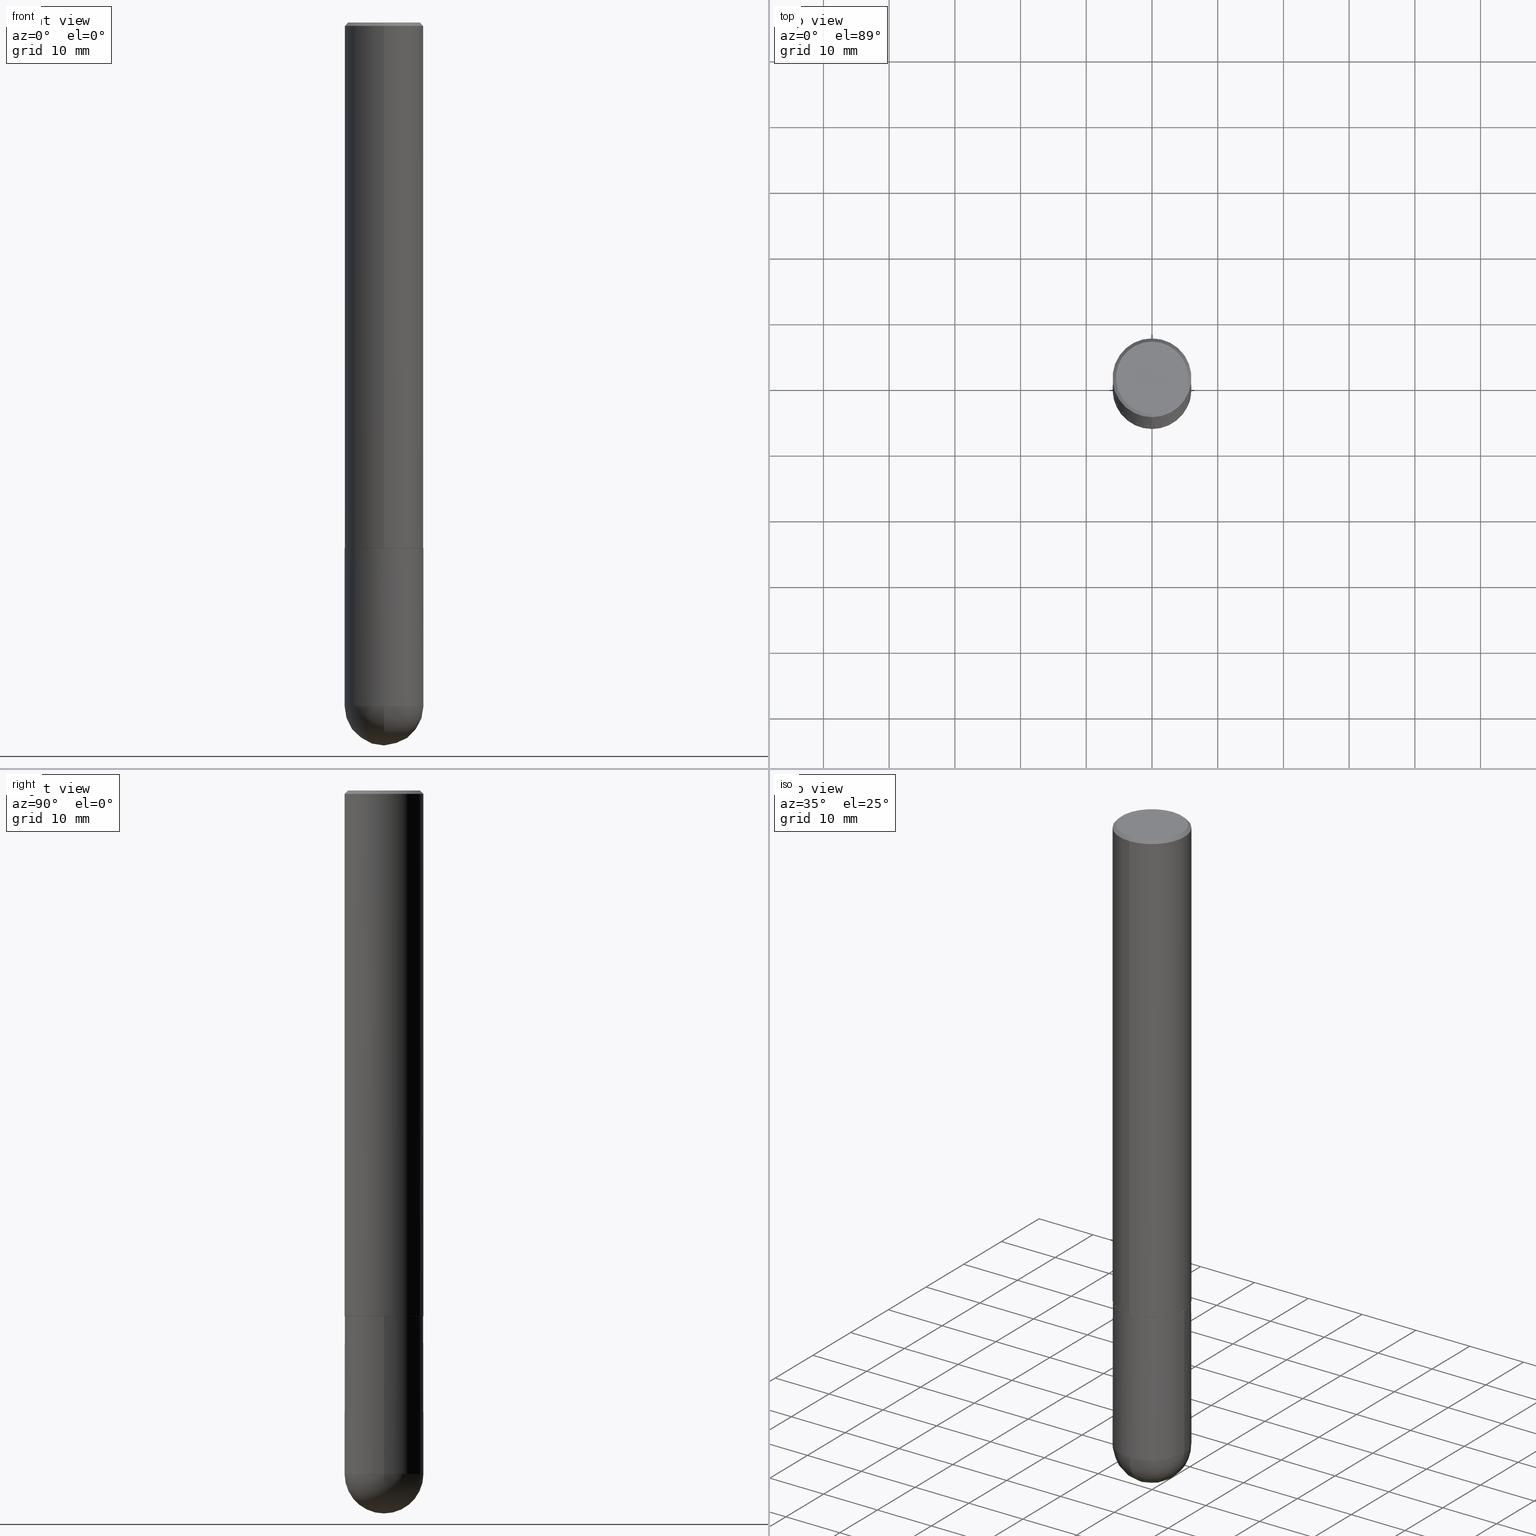
[diagram: canonical four-view strip — front | top / right | iso, engineering-drawing reading convention]
A machine part, canonical four-view strip (front | top / right | iso — engineering-drawing reading convention). The complete STEP part file that produces these views, byte-faithful:
ISO-10303-21;
HEADER;
FILE_DESCRIPTION (( 'STEP AP203' ),
    '1' );
FILE_NAME ('49627.STEP',
    '2024-04-10T12:31:11',
    ( '' ),
    ( '' ),
    'SwSTEP 2.0',
    'SolidWorks 2023',
    '' );
FILE_SCHEMA (( 'CONFIG_CONTROL_DESIGN' ));
ENDSEC;

DATA;
#1 = AXIS2_PLACEMENT_3D ( 'NONE', #71, #196, #137 ) ;
#2 = ADVANCED_FACE ( 'NONE', ( #16 ), #211, .T. ) ;
#3 = CIRCLE ( 'NONE', #91, 0.2362000000000002709 ) ;
#4 = DIRECTION ( 'NONE',  ( 1.000000000000000000, -6.982962677686265133E-15, 0.000000000000000000 ) ) ;
#5 = ADVANCED_BREP_SHAPE_REPRESENTATION ( '49627', ( #185, #309, #49 ), #136 ) ;
#6 = CARTESIAN_POINT ( 'NONE',  ( 1.649375784469572847E-15, 0.2361999999999890021, -3.149600000000001288 ) ) ;
#7 = CARTESIAN_POINT ( 'NONE',  ( 1.026957149490729443E-28, -1.558027752357013406E-14, -4.330700000000000216 ) ) ;
#8 = VECTOR ( 'NONE', #29, 39.37007874015748143 ) ;
#9 = AXIS2_PLACEMENT_3D ( 'NONE', #222, #335, #64 ) ;
#10 = DATE_AND_TIME ( #361, #108 ) ;
#11 = ADVANCED_FACE ( 'NONE', ( #138 ), #78, .F. ) ;
#12 = APPROVAL_STATUS ( 'not_yet_approved' ) ;
#13 = PRODUCT ( '49627', '49627', '', ( #216 ) ) ;
#14 = ORIENTED_EDGE ( 'NONE', *, *, #392, .F. ) ;
#15 = APPLICATION_PROTOCOL_DEFINITION ( 'international standard', 'config_control_design', 1994, #385 ) ;
#16 = FACE_OUTER_BOUND ( 'NONE', #142, .T. ) ;
#17 = EDGE_CURVE ( 'NONE', #304, #225, #317, .T. ) ;
#18 = VECTOR ( 'NONE', #398, 39.37007874015748854 ) ;
#19 = CIRCLE ( 'NONE', #255, 0.2361999999999999933 ) ;
#20 = ORIENTED_EDGE ( 'NONE', *, *, #17, .F. ) ;
#21 = PERSON_AND_ORGANIZATION_ROLE ( 'creator' ) ;
#22 = EDGE_LOOP ( 'NONE', ( #54, #410, #189, #105 ) ) ;
#23 = APPROVAL ( #12, 'UNSPECIFIED' ) ;
#24 = ORIENTED_EDGE ( 'NONE', *, *, #369, .F. ) ;
#25 = DIRECTION ( 'NONE',  ( -2.446209613660721864E-29, 3.490420460373964582E-15, 1.000000000000000000 ) ) ;
#26 = ADVANCED_FACE ( 'NONE', ( #40 ), #102, .T. ) ;
#27 = LINE ( 'NONE', #194, #8 ) ;
#28 = DIRECTION ( 'NONE',  ( 1.000000000000000000, -6.982962677686265133E-15, 0.000000000000000000 ) ) ;
#29 = DIRECTION ( 'NONE',  ( 4.937700262164540154E-15, 0.7071067811865440200, -0.7071067811865511255 ) ) ;
#30 = DIRECTION ( 'NONE',  ( 1.000000000000000000, -6.982962677686265133E-15, 0.000000000000000000 ) ) ;
#31 = ORIENTED_EDGE ( 'NONE', *, *, #140, .F. ) ;
#32 = ORIENTED_EDGE ( 'NONE', *, *, #94, .F. ) ;
#33 = EDGE_CURVE ( 'NONE', #304, #219, #269, .T. ) ;
#34 = DIRECTION ( 'NONE',  ( 6.982962677686265922E-15, 1.000000000000000000, -3.487819265831412533E-15 ) ) ;
#35 = CC_DESIGN_DATE_AND_TIME_ASSIGNMENT ( #47, #354, ( #289 ) ) ;
#36 = ORIENTED_EDGE ( 'NONE', *, *, #272, .F. ) ;
#37 = DIRECTION ( 'NONE',  ( -1.000000000000000000, 6.982962677686265922E-15, -4.876176775795935793E-29 ) ) ;
#38 = EDGE_CURVE ( 'NONE', #79, #396, #152, .T. ) ;
#39 = CYLINDRICAL_SURFACE ( 'NONE', #85, 0.2362000000000001598 ) ;
#40 = FACE_OUTER_BOUND ( 'NONE', #364, .T. ) ;
#41 = CARTESIAN_POINT ( 'NONE',  ( -0.2361999999999999933, -1.096801804149146130E-14, -3.149600000000000399 ) ) ;
#42 = VECTOR ( 'NONE', #199, 39.37007874015748143 ) ;
#43 = VECTOR ( 'NONE', #408, 39.37007874015748143 ) ;
#44 = CARTESIAN_POINT ( 'NONE',  ( 7.702248551960706711E-29, -1.099676962482037231E-14, -3.149600000000000399 ) ) ;
#45 = DIRECTION ( 'NONE',  ( -6.982962677686265922E-15, -1.000000000000000000, 4.626330217890361448E-15 ) ) ;
#46 = ADVANCED_FACE ( 'NONE', ( #221 ), #39, .T. ) ;
#47 = DATE_AND_TIME ( #123, #75 ) ;
#48 = CIRCLE ( 'NONE', #298, 0.2361999999999999378 ) ;
#49 = AXIS2_PLACEMENT_3D ( 'NONE', #359, #390, #332 ) ;
#50 = PRODUCT_RELATED_PRODUCT_CATEGORY ( 'detail', '', ( #13 ) ) ;
#51 = APPROVAL_STATUS ( 'not_yet_approved' ) ;
#52 = PERSON_AND_ORGANIZATION ( #167, #312 ) ;
#53 = EDGE_CURVE ( 'NONE', #125, #263, #290, .T. ) ;
#54 = ORIENTED_EDGE ( 'NONE', *, *, #363, .F. ) ;
#55 = DATE_AND_TIME ( #88, #262 ) ;
#56 = CC_DESIGN_APPROVAL ( #63, ( #218 ) ) ;
#57 = EDGE_LOOP ( 'NONE', ( #279, #346 ) ) ;
#58 = PERSON_AND_ORGANIZATION ( #167, #312 ) ;
#59 = ORIENTED_EDGE ( 'NONE', *, *, #217, .T. ) ;
#60 = ORIENTED_EDGE ( 'NONE', *, *, #369, .T. ) ;
#61 = DIRECTION ( 'NONE',  ( -6.982962677686265922E-15, -1.000000000000000000, 3.490420460373964977E-15 ) ) ;
#62 = DIRECTION ( 'NONE',  ( -6.982962677686265922E-15, -1.000000000000000000, 3.487819265831412533E-15 ) ) ;
#63 = APPROVAL ( #386, 'UNSPECIFIED' ) ;
#64 = DIRECTION ( 'NONE',  ( -6.982962677686265922E-15, -1.000000000000000000, 3.490420460373964582E-15 ) ) ;
#65 = DIRECTION ( 'NONE',  ( -2.445468806185136597E-29, 3.491481338843145583E-15, 1.000000000000000000 ) ) ;
#66 = FACE_OUTER_BOUND ( 'NONE', #76, .T. ) ;
#67 = DIRECTION ( 'NONE',  ( 2.446209613660721584E-29, -3.490420460373964582E-15, -1.000000000000000000 ) ) ;
#68 = FACE_OUTER_BOUND ( 'NONE', #300, .T. ) ;
#69 = DIRECTION ( 'NONE',  ( -6.982962677686265922E-15, -1.000000000000000000, 3.490420460373964977E-15 ) ) ;
#70 = ORIENTED_EDGE ( 'NONE', *, *, #200, .F. ) ;
#71 = CARTESIAN_POINT ( 'NONE',  ( 7.704581799185809683E-29, -1.099342828199384155E-14, -3.149600000000000399 ) ) ;
#72 = DIRECTION ( 'NONE',  ( 1.000000000000000000, -6.982962677686266711E-15, 4.876176775795936353E-29 ) ) ;
#73 = AXIS2_PLACEMENT_3D ( 'NONE', #98, #190, #28 ) ;
#74 = CARTESIAN_POINT ( 'NONE',  ( -1.551844647095920142E-15, -0.2162000000000000866, 6.220756544147017291E-16 ) ) ;
#75 = LOCAL_TIME ( 8, 31, 11.00000000000000000, #393 ) ;
#76 = EDGE_LOOP ( 'NONE', ( #395, #59, #302, #14 ) ) ;
#77 = CARTESIAN_POINT ( 'NONE',  ( 1.671196514507832497E-15, 0.2351999999999890012, -3.149600000000001288 ) ) ;
#78 = PLANE ( 'NONE',  #267 ) ;
#79 = VERTEX_POINT ( 'NONE', #93 ) ;
#80 = DIRECTION ( 'NONE',  ( -2.446209613660721864E-29, 3.490420460373964582E-15, 1.000000000000000000 ) ) ;
#81 = VECTOR ( 'NONE', #376, 39.37007874015748143 ) ;
#82 = CARTESIAN_POINT ( 'NONE',  ( 7.702135589572149804E-29, -1.098993786153346755E-14, -3.148600000000000509 ) ) ;
#83 = PERSON_AND_ORGANIZATION ( #167, #312 ) ;
#84 = CARTESIAN_POINT ( 'NONE',  ( 7.704581799185809683E-29, -1.099342828199384155E-14, -3.149600000000000399 ) ) ;
#85 = AXIS2_PLACEMENT_3D ( 'NONE', #96, #195, #69 ) ;
#86 = AXIS2_PLACEMENT_3D ( 'NONE', #191, #161, #229 ) ;
#87 = EDGE_LOOP ( 'NONE', ( #283, #232, #60, #333 ) ) ;
#88 = CALENDAR_DATE ( 2024, 10, 4 ) ;
#89 = APPROVAL_DATE_TIME ( #10, #63 ) ;
#90 = ORIENTED_EDGE ( 'NONE', *, *, #245, .T. ) ;
#91 = AXIS2_PLACEMENT_3D ( 'NONE', #328, #259, #111 ) ;
#92 = ORIENTED_EDGE ( 'NONE', *, *, #53, .F. ) ;
#93 = CARTESIAN_POINT ( 'NONE',  ( 1.649375784469495934E-15, 0.2361999999999998545, -0.02000000000000087472 ) ) ;
#94 = EDGE_CURVE ( 'NONE', #178, #112, #208, .T. ) ;
#95 = PLANE ( 'NONE',  #9 ) ;
#96 = CARTESIAN_POINT ( 'NONE',  ( 0.000000000000000000, 0.000000000000000000, 0.000000000000000000 ) ) ;
#97 = ORIENTED_EDGE ( 'NONE', *, *, #200, .T. ) ;
#98 = CARTESIAN_POINT ( 'NONE',  ( 7.702248551960706711E-29, -1.099676962482037231E-14, -3.149600000000000399 ) ) ;
#99 = EDGE_CURVE ( 'NONE', #112, #215, #182, .T. ) ;
#100 = AXIS2_PLACEMENT_3D ( 'NONE', #235, #261, #320 ) ;
#101 = CARTESIAN_POINT ( 'NONE',  ( 1.001297202692504215E-28, -1.429587034189326149E-14, -4.094500000000000028 ) ) ;
#102 = CYLINDRICAL_SURFACE ( 'NONE', #168, 0.2361999999999999933 ) ;
#103 = DIRECTION ( 'NONE',  ( -2.446209613660721864E-29, 3.490420460373964582E-15, 1.000000000000000000 ) ) ;
#104 = ADVANCED_FACE ( 'NONE', ( #284 ), #226, .T. ) ;
#105 = ORIENTED_EDGE ( 'NONE', *, *, #319, .F. ) ;
#106 = AXIS2_PLACEMENT_3D ( 'NONE', #315, #254, #34 ) ;
#107 = DIRECTION ( 'NONE',  ( -2.446209613660721864E-29, 3.490420460373964582E-15, 1.000000000000000000 ) ) ;
#108 = LOCAL_TIME ( 8, 31, 11.00000000000000000, #243 ) ;
#109 = ORIENTED_EDGE ( 'NONE', *, *, #126, .F. ) ;
#110 = CARTESIAN_POINT ( 'NONE',  ( 7.702135589572149804E-29, -1.098993786153346755E-14, -3.148600000000000509 ) ) ;
#111 = DIRECTION ( 'NONE',  ( -7.105427357601001070E-15, -1.000000000000000000, 0.000000000000000000 ) ) ;
#112 = VERTEX_POINT ( 'NONE', #166 ) ;
#113 = CARTESIAN_POINT ( 'NONE',  ( 1.579546157692633621E-15, 0.2162000000000000866, -8.871821526510011499E-16 ) ) ;
#114 = ADVANCED_FACE ( 'NONE', ( #280 ), #310, .T. ) ;
#115 = CLOSED_SHELL ( 'NONE', ( #180, #104, #257, #176, #46, #170, #234, #11 ) ) ;
#116 = PRODUCT_DEFINITION_FORMATION_WITH_SPECIFIED_SOURCE ( 'ANY', '', #13, .NOT_KNOWN. ) ;
#117 = CARTESIAN_POINT ( 'NONE',  ( 0.000000000000000000, 0.000000000000000000, 0.000000000000000000 ) ) ;
#118 = DIRECTION ( 'NONE',  ( -2.445468806185136597E-29, 3.491481338843145583E-15, 1.000000000000000000 ) ) ;
#119 = DATE_TIME_ROLE ( 'classification_date' ) ;
#120 = DESIGN_CONTEXT ( 'detailed design', #385, 'design' ) ;
#121 =( NAMED_UNIT ( * ) PLANE_ANGLE_UNIT ( ) SI_UNIT ( $, .RADIAN. ) );
#122 = CALENDAR_DATE ( 2024, 10, 4 ) ;
#123 = CALENDAR_DATE ( 2024, 10, 4 ) ;
#124 = DATE_AND_TIME ( #122, #240 ) ;
#125 = VERTEX_POINT ( 'NONE', #316 ) ;
#126 = EDGE_CURVE ( 'NONE', #306, #79, #27, .T. ) ;
#127 = AXIS2_PLACEMENT_3D ( 'NONE', #139, #223, #334 ) ;
#128 = APPROVAL_PERSON_ORGANIZATION ( #331, #23, #301 ) ;
#129 = DIRECTION ( 'NONE',  ( -2.446209613660721864E-29, 3.490420460373964582E-15, 1.000000000000000000 ) ) ;
#130 = FACE_OUTER_BOUND ( 'NONE', #256, .T. ) ;
#131 = DIRECTION ( 'NONE',  ( -2.445468806185136597E-29, 3.491481338843145583E-15, 1.000000000000000000 ) ) ;
#132 = LINE ( 'NONE', #252, #18 ) ;
#133 = CC_DESIGN_PERSON_AND_ORGANIZATION_ASSIGNMENT ( #270, #151, ( #116 ) ) ;
#134 = CIRCLE ( 'NONE', #157, 0.2351999999999999924 ) ;
#135 = ORIENTED_EDGE ( 'NONE', *, *, #272, .T. ) ;
#136 =( GEOMETRIC_REPRESENTATION_CONTEXT ( 3 ) GLOBAL_UNCERTAINTY_ASSIGNED_CONTEXT ( ( #181 ) ) GLOBAL_UNIT_ASSIGNED_CONTEXT ( ( #171, #121, #273 ) ) REPRESENTATION_CONTEXT ( 'NONE', 'WORKASPACE' ) );
#137 = DIRECTION ( 'NONE',  ( -6.982962677686265133E-15, -1.000000000000000000, 4.645999989224937221E-15 ) ) ;
#138 = FACE_OUTER_BOUND ( 'NONE', #198, .T. ) ;
#139 = CARTESIAN_POINT ( 'NONE',  ( 9.681852249011155898E-29, -1.477005271003331337E-14, -4.094500000000000028 ) ) ;
#140 = EDGE_CURVE ( 'NONE', #263, #360, #250, .T. ) ;
#141 = DIRECTION ( 'NONE',  ( 2.438088387897960049E-29, -3.491481338843145188E-15, -1.000000000000000000 ) ) ;
#142 = EDGE_LOOP ( 'NONE', ( #70, #344, #324, #313, #362 ) ) ;
#143 = VECTOR ( 'NONE', #277, 39.37007874015748143 ) ;
#144 = DIRECTION ( 'NONE',  ( -2.446209613660721864E-29, 3.490420460373964582E-15, 1.000000000000000000 ) ) ;
#145 = AXIS2_PLACEMENT_3D ( 'NONE', #292, #239, #342 ) ;
#146 = ORIENTED_EDGE ( 'NONE', *, *, #33, .F. ) ;
#147 = DIRECTION ( 'NONE',  ( 1.000000000000000000, -6.982962677686265133E-15, 0.000000000000000000 ) ) ;
#148 = EDGE_CURVE ( 'NONE', #396, #79, #48, .T. ) ;
#149 = FACE_OUTER_BOUND ( 'NONE', #391, .T. ) ;
#150 = CC_DESIGN_PERSON_AND_ORGANIZATION_ASSIGNMENT ( #83, #275, ( #218 ) ) ;
#151 = PERSON_AND_ORGANIZATION_ROLE ( 'design_supplier' ) ;
#152 = CIRCLE ( 'NONE', #372, 0.2361999999999999378 ) ;
#153 = AXIS2_PLACEMENT_3D ( 'NONE', #345, #377, #202 ) ;
#154 = COORDINATED_UNIVERSAL_TIME_OFFSET ( 5, 0, .BEHIND. ) ;
#155 = PERSON_AND_ORGANIZATION_ROLE ( 'creator' ) ;
#156 = VERTEX_POINT ( 'NONE', #286 ) ;
#157 = AXIS2_PLACEMENT_3D ( 'NONE', #220, #103, #407 ) ;
#158 = SECURITY_CLASSIFICATION_LEVEL ( 'unclassified' ) ;
#159 = CARTESIAN_POINT ( 'NONE',  ( 1.674749228186634382E-15, 0.2351999999999890012, -3.149600000000001288 ) ) ;
#160 = CONICAL_SURFACE ( 'NONE', #1, 0.2351999999999999924, 0.7853981633977554777 ) ;
#161 = DIRECTION ( 'NONE',  ( -2.446209613660721864E-29, 3.490420460373964582E-15, 1.000000000000000000 ) ) ;
#162 = EDGE_CURVE ( 'NONE', #278, #396, #132, .T. ) ;
#163 = ORIENTED_EDGE ( 'NONE', *, *, #126, .T. ) ;
#164 = CARTESIAN_POINT ( 'NONE',  ( 7.704581799185809683E-29, -1.099342828199384155E-14, -3.149600000000000399 ) ) ;
#165 = ORIENTED_EDGE ( 'NONE', *, *, #217, .F. ) ;
#166 = CARTESIAN_POINT ( 'NONE',  ( -0.2361999999999999933, -1.096801804149146287E-14, -4.094500000000000028 ) ) ;
#167 = PERSON ( 'UNSPECIFIED', 'UNSPECIFIED', 'UNSPECIFIED', ('UNSPECIFIED'), ('UNSPECIFIED'), ('UNSPECIFIED') ) ;
#168 = AXIS2_PLACEMENT_3D ( 'NONE', #268, #118, #184 ) ;
#169 = FACE_OUTER_BOUND ( 'NONE', #389, .T. ) ;
#170 = ADVANCED_FACE ( 'NONE', ( #66 ), #238, .T. ) ;
#171 =( CONVERSION_BASED_UNIT ( 'INCH', #322 ) LENGTH_UNIT ( ) NAMED_UNIT ( #366 ) );
#172 = ORIENTED_EDGE ( 'NONE', *, *, #350, .T. ) ;
#173 = FACE_OUTER_BOUND ( 'NONE', #291, .T. ) ;
#174 = LINE ( 'NONE', #77, #81 ) ;
#175 = CIRCLE ( 'NONE', #388, 0.2361999999999999933 ) ;
#176 = ADVANCED_FACE ( 'NONE', ( #68 ), #351, .T. ) ;
#177 = DIRECTION ( 'NONE',  ( -2.445468806185136597E-29, 3.491481338843145583E-15, 1.000000000000000000 ) ) ;
#178 = VERTEX_POINT ( 'NONE', #403 ) ;
#179 = DIRECTION ( 'NONE',  ( 6.982962677686265922E-15, 1.000000000000000000, -3.490420460373964582E-15 ) ) ;
#180 = ADVANCED_FACE ( 'NONE', ( #169 ), #160, .T. ) ;
#181 = UNCERTAINTY_MEASURE_WITH_UNIT (LENGTH_MEASURE( 1.000000000000000082E-05 ), #171, 'distance_accuracy_value', 'NONE');
#182 = CIRCLE ( 'NONE', #201, 0.2361999999999999933 ) ;
#183 = AXIS2_PLACEMENT_3D ( 'NONE', #110, #107, #206 ) ;
#184 = DIRECTION ( 'NONE',  ( 1.000000000000000000, -6.982962677686266711E-15, 4.876176775795936353E-29 ) ) ;
#185 = MANIFOLD_SOLID_BREP ( 'Body-Move/Copy2[1]', #231 ) ;
#186 = APPROVAL_PERSON_ORGANIZATION ( #52, #293, #246 ) ;
#187 = COORDINATED_UNIVERSAL_TIME_OFFSET ( 5, 0, .BEHIND. ) ;
#188 = CARTESIAN_POINT ( 'NONE',  ( -1.642392821791732414E-15, -0.2352000000000109836, -3.149599999999999067 ) ) ;
#189 = ORIENTED_EDGE ( 'NONE', *, *, #336, .F. ) ;
#190 = DIRECTION ( 'NONE',  ( -2.445468806185136597E-29, 3.491481338843145583E-15, 1.000000000000000000 ) ) ;
#191 = CARTESIAN_POINT ( 'NONE',  ( 3.242530323147823351E-45, -4.626665728110367904E-31, -1.325532491181496858E-16 ) ) ;
#192 = VECTOR ( 'NONE', #258, 39.37007874015748143 ) ;
#193 = AXIS2_PLACEMENT_3D ( 'NONE', #6, #141, #37 ) ;
#194 = CARTESIAN_POINT ( 'NONE',  ( 1.649375784469495934E-15, 0.2361999999999998545, -0.02000000000000087472 ) ) ;
#195 = DIRECTION ( 'NONE',  ( -2.446209613660721864E-29, 3.490420460373964582E-15, 1.000000000000000000 ) ) ;
#196 = DIRECTION ( 'NONE',  ( -2.446209613660721864E-29, 3.490420460373964582E-15, 1.000000000000000000 ) ) ;
#197 = ORIENTED_EDGE ( 'NONE', *, *, #94, .T. ) ;
#198 = EDGE_LOOP ( 'NONE', ( #90, #172 ) ) ;
#199 = DIRECTION ( 'NONE',  ( -2.445468806185136877E-29, 3.491481338843145188E-15, 1.000000000000000000 ) ) ;
#200 = EDGE_CURVE ( 'NONE', #112, #360, #368, .T. ) ;
#201 = AXIS2_PLACEMENT_3D ( 'NONE', #101, #131, #314 ) ;
#202 = DIRECTION ( 'NONE',  ( 6.982962677686265922E-15, 1.000000000000000000, 0.000000000000000000 ) ) ;
#203 = CC_DESIGN_DATE_AND_TIME_ASSIGNMENT ( #124, #119, ( #218 ) ) ;
#204 = LINE ( 'NONE', #209, #43 ) ;
#205 = EDGE_LOOP ( 'NONE', ( #135, #249, #371, #24 ) ) ;
#206 = DIRECTION ( 'NONE',  ( -6.982962677686265922E-15, -1.000000000000000000, 4.626330217890361448E-15 ) ) ;
#207 = ORIENTED_EDGE ( 'NONE', *, *, #363, .T. ) ;
#208 = CIRCLE ( 'NONE', #402, 0.2361999999999999933 ) ;
#209 = CARTESIAN_POINT ( 'NONE',  ( 1.678301941865357577E-15, 0.2362000000000001598, -8.244373127403310428E-16 ) ) ;
#210 = CIRCLE ( 'NONE', #373, 0.2361999999999999933 ) ;
#211 = CYLINDRICAL_SURFACE ( 'NONE', #325, 0.2361999999999999933 ) ;
#212 = CARTESIAN_POINT ( 'NONE',  ( -1.642392821791732414E-15, -0.2352000000000109836, -3.149599999999999067 ) ) ;
#213 = SHAPE_DEFINITION_REPRESENTATION ( #271, #5 ) ;
#214 = CALENDAR_DATE ( 2024, 10, 4 ) ;
#215 = VERTEX_POINT ( 'NONE', #374 ) ;
#216 = MECHANICAL_CONTEXT ( 'NONE', #380, 'mechanical' ) ;
#217 = EDGE_CURVE ( 'NONE', #225, #304, #134, .T. ) ;
#218 = SECURITY_CLASSIFICATION ( '', '', #158 ) ;
#219 = VERTEX_POINT ( 'NONE', #365 ) ;
#220 = CARTESIAN_POINT ( 'NONE',  ( 7.704581799185809683E-29, -1.099342828199384155E-14, -3.149600000000000399 ) ) ;
#221 = FACE_OUTER_BOUND ( 'NONE', #87, .T. ) ;
#222 = CARTESIAN_POINT ( 'NONE',  ( 7.704581799185809683E-29, -1.099342828199384155E-14, -3.149600000000000399 ) ) ;
#223 = DIRECTION ( 'NONE',  ( -1.000000000000000000, 6.982962677686265922E-15, -4.883557194083112901E-29 ) ) ;
#224 = AXIS2_PLACEMENT_3D ( 'NONE', #412, #144, #237 ) ;
#225 = VERTEX_POINT ( 'NONE', #159 ) ;
#226 = CYLINDRICAL_SURFACE ( 'NONE', #311, 0.2362000000000001598 ) ;
#227 = ORIENTED_EDGE ( 'NONE', *, *, #162, .F. ) ;
#228 = DIRECTION ( 'NONE',  ( -2.446209613660721864E-29, 3.490420460373964582E-15, 1.000000000000000000 ) ) ;
#229 = DIRECTION ( 'NONE',  ( -6.982962677686265922E-15, -1.000000000000000000, 3.490420460373964582E-15 ) ) ;
#230 = ORIENTED_EDGE ( 'NONE', *, *, #350, .F. ) ;
#231 = CLOSED_SHELL ( 'NONE', ( #26, #406, #114, #378, #2 ) ) ;
#232 = ORIENTED_EDGE ( 'NONE', *, *, #392, .T. ) ;
#233 = LINE ( 'NONE', #265, #382 ) ;
#234 = ADVANCED_FACE ( 'NONE', ( #130 ), #95, .F. ) ;
#235 = CARTESIAN_POINT ( 'NONE',  ( 9.681852249011155898E-29, -1.477005271003331337E-14, -4.094500000000000028 ) ) ;
#236 = CC_DESIGN_PERSON_AND_ORGANIZATION_ASSIGNMENT ( #329, #155, ( #289 ) ) ;
#237 = DIRECTION ( 'NONE',  ( -6.982962677686265922E-15, -1.000000000000000000, 3.490420460373964582E-15 ) ) ;
#238 = CONICAL_SURFACE ( 'NONE', #397, 0.2351999999999999924, 0.7853981633977554777 ) ;
#239 = DIRECTION ( 'NONE',  ( 2.446209613660721864E-29, -3.490420460373964582E-15, -1.000000000000000000 ) ) ;
#240 = LOCAL_TIME ( 8, 31, 11.00000000000000000, #299 ) ;
#241 = APPROVAL_ROLE ( '' ) ;
#242 = PERSON_AND_ORGANIZATION_ROLE ( 'design_owner' ) ;
#243 = COORDINATED_UNIVERSAL_TIME_OFFSET ( 5, 0, .BEHIND. ) ;
#244 = CC_DESIGN_SECURITY_CLASSIFICATION ( #218, ( #116 ) ) ;
#245 = EDGE_CURVE ( 'NONE', #306, #278, #339, .T. ) ;
#246 = APPROVAL_ROLE ( '' ) ;
#247 = PERSON_AND_ORGANIZATION ( #167, #312 ) ;
#248 = ORIENTED_EDGE ( 'NONE', *, *, #99, .F. ) ;
#249 = ORIENTED_EDGE ( 'NONE', *, *, #296, .T. ) ;
#250 = CIRCLE ( 'NONE', #73, 0.2361999999999999933 ) ;
#251 = CC_DESIGN_APPROVAL ( #23, ( #289 ) ) ;
#252 = CARTESIAN_POINT ( 'NONE',  ( -1.620449627073634487E-15, -0.2361999999999999933, -0.01999999999999922673 ) ) ;
#253 = CARTESIAN_POINT ( 'NONE',  ( 0.000000000000000000, 0.000000000000000000, 0.000000000000000000 ) ) ;
#254 = DIRECTION ( 'NONE',  ( 2.446209613660721864E-29, -3.490420460373964582E-15, -1.000000000000000000 ) ) ;
#255 = AXIS2_PLACEMENT_3D ( 'NONE', #44, #177, #147 ) ;
#256 = EDGE_LOOP ( 'NONE', ( #20, #165 ) ) ;
#257 = ADVANCED_FACE ( 'NONE', ( #173 ), #294, .T. ) ;
#258 = DIRECTION ( 'NONE',  ( -2.445468806185136877E-29, 3.491481338843145188E-15, 1.000000000000000000 ) ) ;
#259 = DIRECTION ( 'NONE',  ( -1.000000000000000000, 7.105427357601001070E-15, -4.926315508542082329E-29 ) ) ;
#260 = ORIENTED_EDGE ( 'NONE', *, *, #399, .T. ) ;
#261 = DIRECTION ( 'NONE',  ( -1.000000000000000000, 6.982962677686265922E-15, -4.883557194083112901E-29 ) ) ;
#262 = LOCAL_TIME ( 8, 31, 11.00000000000000000, #154 ) ;
#263 = VERTEX_POINT ( 'NONE', #349 ) ;
#264 = PLANE ( 'NONE',  #193 ) ;
#265 = CARTESIAN_POINT ( 'NONE',  ( -1.649375784469497117E-15, -0.2362000000000001598, 8.244373127403310428E-16 ) ) ;
#266 =( LENGTH_UNIT ( ) NAMED_UNIT ( * ) SI_UNIT ( $, .METRE. ) );
#267 = AXIS2_PLACEMENT_3D ( 'NONE', #338, #67, #179 ) ;
#268 = CARTESIAN_POINT ( 'NONE',  ( 0.000000000000000000, 0.000000000000000000, 0.000000000000000000 ) ) ;
#269 = LINE ( 'NONE', #188, #143 ) ;
#270 = PERSON_AND_ORGANIZATION ( #167, #312 ) ;
#271 = PRODUCT_DEFINITION_SHAPE ( 'NONE', 'NONE',  #289 ) ;
#272 = EDGE_CURVE ( 'NONE', #219, #156, #318, .T. ) ;
#273 =( NAMED_UNIT ( * ) SI_UNIT ( $, .STERADIAN. ) SOLID_ANGLE_UNIT ( ) );
#274 = CIRCLE ( 'NONE', #224, 0.2162000000000000866 ) ;
#275 = PERSON_AND_ORGANIZATION_ROLE ( 'classification_officer' ) ;
#276 = ORIENTED_EDGE ( 'NONE', *, *, #17, .T. ) ;
#277 = DIRECTION ( 'NONE',  ( -4.937700262166064233E-15, -0.7071067811867622899, 0.7071067811863327446 ) ) ;
#278 = VERTEX_POINT ( 'NONE', #74 ) ;
#279 = ORIENTED_EDGE ( 'NONE', *, *, #140, .T. ) ;
#280 = FACE_OUTER_BOUND ( 'NONE', #22, .T. ) ;
#281 = APPROVAL_PERSON_ORGANIZATION ( #247, #63, #241 ) ;
#282 = CARTESIAN_POINT ( 'NONE',  ( 4.892419227321456446E-31, -6.980840920747946766E-17, -0.02000000000000005246 ) ) ;
#283 = ORIENTED_EDGE ( 'NONE', *, *, #296, .F. ) ;
#284 = FACE_OUTER_BOUND ( 'NONE', #205, .T. ) ;
#285 = DIRECTION ( 'NONE',  ( -2.445468806185136597E-29, 3.491481338843145583E-15, 1.000000000000000000 ) ) ;
#286 = CARTESIAN_POINT ( 'NONE',  ( 1.678301941865397612E-15, 0.2361999999999894462, -3.148600000000001398 ) ) ;
#287 = CARTESIAN_POINT ( 'NONE',  ( -0.2361999999999999933, 1.678301941865356591E-15, -1.161852468318208757E-29 ) ) ;
#288 = CARTESIAN_POINT ( 'NONE',  ( 1.001297202692504215E-28, -1.429587034189326149E-14, -4.094500000000000028 ) ) ;
#289 = PRODUCT_DEFINITION ( 'UNKNOWN', '', #116, #120 ) ;
#290 = LINE ( 'NONE', #401, #42 ) ;
#291 = EDGE_LOOP ( 'NONE', ( #230, #348, #323, #109 ) ) ;
#292 = CARTESIAN_POINT ( 'NONE',  ( 4.892419227321456446E-31, -6.980840920747946766E-17, -0.02000000000000005246 ) ) ;
#293 = APPROVAL ( #51, 'UNSPECIFIED' ) ;
#294 = CONICAL_SURFACE ( 'NONE', #145, 0.2361999999999999378, 0.7853981633974467247 ) ;
#295 = DIRECTION ( 'NONE',  ( -2.446209613660722145E-29, 3.490420460373964582E-15, 1.000000000000000000 ) ) ;
#296 = EDGE_CURVE ( 'NONE', #156, #79, #204, .T. ) ;
#297 = CARTESIAN_POINT ( 'NONE',  ( -1.620449627073634487E-15, -0.2361999999999999933, -0.01999999999999922673 ) ) ;
#298 = AXIS2_PLACEMENT_3D ( 'NONE', #337, #228, #370 ) ;
#299 = COORDINATED_UNIVERSAL_TIME_OFFSET ( 5, 0, .BEHIND. ) ;
#300 = EDGE_LOOP ( 'NONE', ( #227, #394, #163, #307 ) ) ;
#301 = APPROVAL_ROLE ( '' ) ;
#302 = ORIENTED_EDGE ( 'NONE', *, *, #33, .T. ) ;
#303 = APPROVAL_DATE_TIME ( #55, #293 ) ;
#304 = VERTEX_POINT ( 'NONE', #212 ) ;
#305 = APPROVAL_DATE_TIME ( #330, #23 ) ;
#306 = VERTEX_POINT ( 'NONE', #113 ) ;
#307 = ORIENTED_EDGE ( 'NONE', *, *, #38, .T. ) ;
#308 = DIRECTION ( 'NONE',  ( -2.446209613660721864E-29, 3.490420460373964582E-15, 1.000000000000000000 ) ) ;
#309 = MANIFOLD_SOLID_BREP ( 'Body-Move/Copy2[2]', #115 ) ;
#310 = SPHERICAL_SURFACE ( 'NONE', #127, 0.2362000000000002709 ) ;
#311 = AXIS2_PLACEMENT_3D ( 'NONE', #253, #341, #61 ) ;
#312 = ORGANIZATION ( 'UNSPECIFIED', 'UNSPECIFIED', '' ) ;
#313 = ORIENTED_EDGE ( 'NONE', *, *, #53, .T. ) ;
#314 = DIRECTION ( 'NONE',  ( 1.000000000000000000, -6.982962677686265133E-15, 0.000000000000000000 ) ) ;
#315 = CARTESIAN_POINT ( 'NONE',  ( 4.892419227321456446E-31, -6.980840920747946766E-17, -0.02000000000000005246 ) ) ;
#316 = CARTESIAN_POINT ( 'NONE',  ( 0.2361999999999999933, -1.429569576782631264E-14, -4.094500000000000028 ) ) ;
#317 = CIRCLE ( 'NONE', #387, 0.2351999999999999924 ) ;
#318 = CIRCLE ( 'NONE', #358, 0.2362000000000004096 ) ;
#319 = EDGE_CURVE ( 'NONE', #215, #125, #210, .T. ) ;
#320 = DIRECTION ( 'NONE',  ( 6.982962677686265922E-15, 1.000000000000000000, -4.626330217890364603E-15 ) ) ;
#321 = DIRECTION ( 'NONE',  ( -2.445468806185136597E-29, 3.491481338843145583E-15, 1.000000000000000000 ) ) ;
#322 = LENGTH_MEASURE_WITH_UNIT ( LENGTH_MEASURE( 0.02539999999999999897 ), #266 );
#323 = ORIENTED_EDGE ( 'NONE', *, *, #148, .T. ) ;
#324 = ORIENTED_EDGE ( 'NONE', *, *, #319, .T. ) ;
#325 = AXIS2_PLACEMENT_3D ( 'NONE', #117, #65, #72 ) ;
#326 = CIRCLE ( 'NONE', #183, 0.2362000000000004096 ) ;
#327 = CARTESIAN_POINT ( 'NONE',  ( 1.001297202692504215E-28, -1.429587034189326149E-14, -4.094500000000000028 ) ) ;
#328 = CARTESIAN_POINT ( 'NONE',  ( 9.681852249011155898E-29, -1.477005271003331337E-14, -4.094500000000000028 ) ) ;
#329 = PERSON_AND_ORGANIZATION ( #167, #312 ) ;
#330 = DATE_AND_TIME ( #214, #352 ) ;
#331 = PERSON_AND_ORGANIZATION ( #167, #312 ) ;
#332 = DIRECTION ( 'NONE',  ( 1.000000000000000000, 0.000000000000000000, 0.000000000000000000 ) ) ;
#333 = ORIENTED_EDGE ( 'NONE', *, *, #38, .F. ) ;
#334 = DIRECTION ( 'NONE',  ( 6.982962677686265922E-15, 1.000000000000000000, -4.626330217890364603E-15 ) ) ;
#335 = DIRECTION ( 'NONE',  ( -2.446209613660721584E-29, 3.490420460373964582E-15, 1.000000000000000000 ) ) ;
#336 = EDGE_CURVE ( 'NONE', #125, #178, #175, .T. ) ;
#337 = CARTESIAN_POINT ( 'NONE',  ( 4.892419227321456446E-31, -6.980840920747946766E-17, -0.02000000000000005246 ) ) ;
#338 = CARTESIAN_POINT ( 'NONE',  ( 1.509716530915771309E-15, 0.2162000000000000866, -8.209055280919261961E-16 ) ) ;
#339 = CIRCLE ( 'NONE', #86, 0.2162000000000000866 ) ;
#340 = DIRECTION ( 'NONE',  ( -6.982962677686265133E-15, -1.000000000000000000, 4.645999989224937221E-15 ) ) ;
#341 = DIRECTION ( 'NONE',  ( -2.446209613660721864E-29, 3.490420460373964582E-15, 1.000000000000000000 ) ) ;
#342 = DIRECTION ( 'NONE',  ( 6.982962677686265922E-15, 1.000000000000000000, -3.487819265831412533E-15 ) ) ;
#343 = CIRCLE ( 'NONE', #153, 0.2362000000000002709 ) ;
#344 = ORIENTED_EDGE ( 'NONE', *, *, #99, .T. ) ;
#345 = CARTESIAN_POINT ( 'NONE',  ( 9.681852249011155898E-29, -1.477005271003331337E-14, -4.094500000000000028 ) ) ;
#346 = ORIENTED_EDGE ( 'NONE', *, *, #375, .T. ) ;
#347 = FACE_OUTER_BOUND ( 'NONE', #57, .T. ) ;
#348 = ORIENTED_EDGE ( 'NONE', *, *, #162, .T. ) ;
#349 = CARTESIAN_POINT ( 'NONE',  ( 0.2361999999999999933, -1.264614540928986883E-14, -3.149600000000000399 ) ) ;
#350 = EDGE_CURVE ( 'NONE', #278, #306, #274, .T. ) ;
#351 = CONICAL_SURFACE ( 'NONE', #106, 0.2361999999999999378, 0.7853981633974467247 ) ;
#352 = LOCAL_TIME ( 8, 31, 11.00000000000000000, #187 ) ;
#353 = DIRECTION ( 'NONE',  ( 1.000000000000000000, -6.982962677686265133E-15, 0.000000000000000000 ) ) ;
#354 = DATE_TIME_ROLE ( 'creation_date' ) ;
#355 = CC_DESIGN_PERSON_AND_ORGANIZATION_ASSIGNMENT ( #58, #242, ( #13 ) ) ;
#356 = PERSON_AND_ORGANIZATION ( #167, #312 ) ;
#357 = CC_DESIGN_PERSON_AND_ORGANIZATION_ASSIGNMENT ( #356, #21, ( #116 ) ) ;
#358 = AXIS2_PLACEMENT_3D ( 'NONE', #82, #80, #45 ) ;
#359 = CARTESIAN_POINT ( 'NONE',  ( 0.000000000000000000, 0.000000000000000000, 0.000000000000000000 ) ) ;
#360 = VERTEX_POINT ( 'NONE', #41 ) ;
#361 = CALENDAR_DATE ( 2024, 10, 4 ) ;
#362 = ORIENTED_EDGE ( 'NONE', *, *, #375, .F. ) ;
#363 = EDGE_CURVE ( 'NONE', #409, #215, #3, .T. ) ;
#364 = EDGE_LOOP ( 'NONE', ( #197, #97, #31, #92, #411 ) ) ;
#365 = CARTESIAN_POINT ( 'NONE',  ( -1.649375784469421978E-15, -0.2362000000000114008, -3.148599999999999177 ) ) ;
#366 = DIMENSIONAL_EXPONENTS ( 1.000000000000000000, 0.000000000000000000, 0.000000000000000000, 0.000000000000000000, 0.000000000000000000, 0.000000000000000000, 0.000000000000000000 ) ;
#367 = DIRECTION ( 'NONE',  ( -6.982962677686265133E-15, -1.000000000000000000, 4.645999989224937221E-15 ) ) ;
#368 = LINE ( 'NONE', #287, #192 ) ;
#369 = EDGE_CURVE ( 'NONE', #219, #396, #233, .T. ) ;
#370 = DIRECTION ( 'NONE',  ( -6.982962677686265922E-15, -1.000000000000000000, 3.487819265831412533E-15 ) ) ;
#371 = ORIENTED_EDGE ( 'NONE', *, *, #148, .F. ) ;
#372 = AXIS2_PLACEMENT_3D ( 'NONE', #282, #25, #62 ) ;
#373 = AXIS2_PLACEMENT_3D ( 'NONE', #327, #379, #4 ) ;
#374 = CARTESIAN_POINT ( 'NONE',  ( -1.678301941865258773E-15, -0.2362000000000146760, -4.094499999999999140 ) ) ;
#375 = EDGE_CURVE ( 'NONE', #360, #263, #19, .T. ) ;
#376 = DIRECTION ( 'NONE',  ( 5.024295867789605402E-15, 0.7071067811867671749, 0.7071067811863278596 ) ) ;
#377 = DIRECTION ( 'NONE',  ( 1.000000000000000000, -6.982962677686265922E-15, 4.883557194083112340E-29 ) ) ;
#378 = ADVANCED_FACE ( 'NONE', ( #347 ), #264, .F. ) ;
#379 = DIRECTION ( 'NONE',  ( -2.445468806185136597E-29, 3.491481338843145583E-15, 1.000000000000000000 ) ) ;
#380 = APPLICATION_CONTEXT ( 'configuration controlled 3d designs of mechanical parts and assemblies' ) ;
#381 = SPHERICAL_SURFACE ( 'NONE', #100, 0.2362000000000002709 ) ;
#382 = VECTOR ( 'NONE', #295, 39.37007874015748143 ) ;
#383 = EDGE_CURVE ( 'NONE', #409, #178, #343, .T. ) ;
#384 = APPLICATION_PROTOCOL_DEFINITION ( 'international standard', 'config_control_design', 1994, #380 ) ;
#385 = APPLICATION_CONTEXT ( 'configuration controlled 3d designs of mechanical parts and assemblies' ) ;
#386 = APPROVAL_STATUS ( 'not_yet_approved' ) ;
#387 = AXIS2_PLACEMENT_3D ( 'NONE', #84, #129, #367 ) ;
#388 = AXIS2_PLACEMENT_3D ( 'NONE', #288, #321, #353 ) ;
#389 = EDGE_LOOP ( 'NONE', ( #276, #260, #36, #146 ) ) ;
#390 = DIRECTION ( 'NONE',  ( 0.000000000000000000, 0.000000000000000000, 1.000000000000000000 ) ) ;
#391 = EDGE_LOOP ( 'NONE', ( #404, #207, #248, #32 ) ) ;
#392 = EDGE_CURVE ( 'NONE', #156, #219, #326, .T. ) ;
#393 = COORDINATED_UNIVERSAL_TIME_OFFSET ( 5, 0, .BEHIND. ) ;
#394 = ORIENTED_EDGE ( 'NONE', *, *, #245, .F. ) ;
#395 = ORIENTED_EDGE ( 'NONE', *, *, #399, .F. ) ;
#396 = VERTEX_POINT ( 'NONE', #297 ) ;
#397 = AXIS2_PLACEMENT_3D ( 'NONE', #164, #308, #340 ) ;
#398 = DIRECTION ( 'NONE',  ( -4.851104656540955597E-15, -0.7071067811865487940, -0.7071067811865461294 ) ) ;
#399 = EDGE_CURVE ( 'NONE', #225, #156, #174, .T. ) ;
#400 = CARTESIAN_POINT ( 'NONE',  ( 1.001297202692504215E-28, -1.429587034189326149E-14, -4.094500000000000028 ) ) ;
#401 = CARTESIAN_POINT ( 'NONE',  ( 0.2361999999999999933, -1.649375784469496131E-15, 1.151752954443000088E-29 ) ) ;
#402 = AXIS2_PLACEMENT_3D ( 'NONE', #400, #285, #30 ) ;
#403 = CARTESIAN_POINT ( 'NONE',  ( 1.649375784469595330E-15, 0.2361999999999855882, -4.094500000000001805 ) ) ;
#404 = ORIENTED_EDGE ( 'NONE', *, *, #383, .F. ) ;
#405 = CC_DESIGN_APPROVAL ( #293, ( #116 ) ) ;
#406 = ADVANCED_FACE ( 'NONE', ( #149 ), #381, .T. ) ;
#407 = DIRECTION ( 'NONE',  ( -6.982962677686265133E-15, -1.000000000000000000, 4.645999989224937221E-15 ) ) ;
#408 = DIRECTION ( 'NONE',  ( -2.446209613660722145E-29, 3.490420460373964582E-15, 1.000000000000000000 ) ) ;
#409 = VERTEX_POINT ( 'NONE', #7 ) ;
#410 = ORIENTED_EDGE ( 'NONE', *, *, #383, .T. ) ;
#411 = ORIENTED_EDGE ( 'NONE', *, *, #336, .T. ) ;
#412 = CARTESIAN_POINT ( 'NONE',  ( 3.242530323147823351E-45, -4.626665728110367904E-31, -1.325532491181496858E-16 ) ) ;
ENDSEC;
END-ISO-10303-21;
